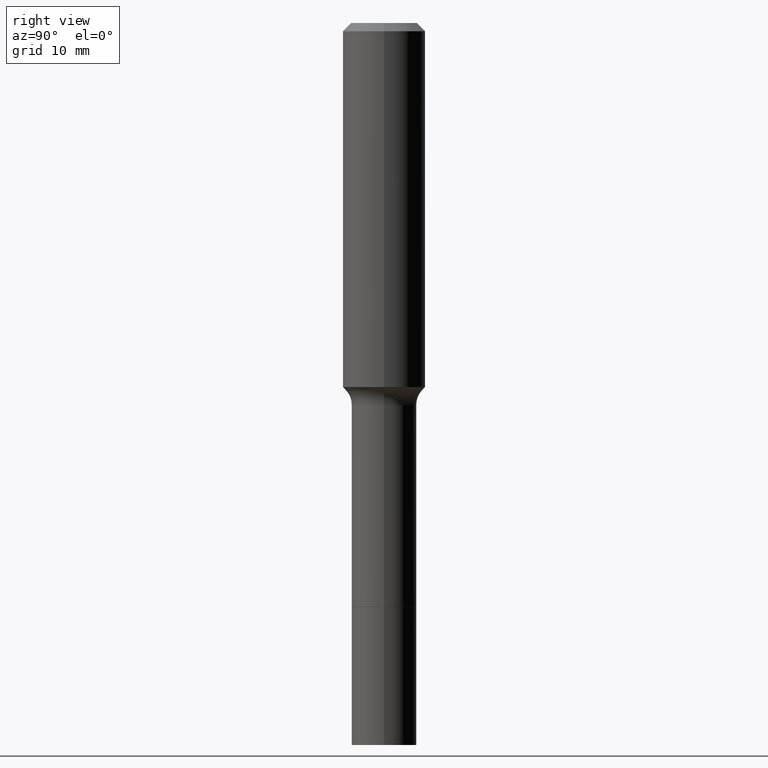
[diagram: clean part render]
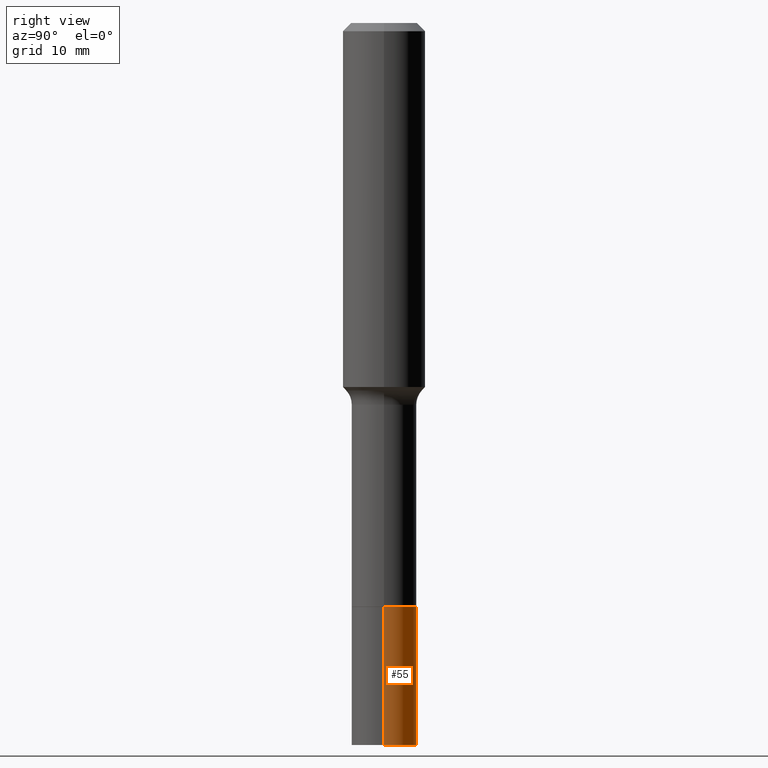
[diagram: same view with one face highlighted and labeled with its STEP entity id]
A machine part, right view. The second image highlights one B-rep face of the part: STEP entity #55.
In plain terms, the highlighted cylindrical surface (edge-blend (fillet) strip) has radius 3.1496 mm, axis along (-0, 0, 1).
Its self-contained STEP definition (entity closure, byte-faithful):
#13 = DIRECTION ( 'NONE',  ( -2.445468806185136597E-29, 3.491481338843145583E-15, 1.000000000000000000 ) ) ;
#55 = ADVANCED_FACE ( 'NONE', ( #202 ), #233, .T. ) ;
#60 = CARTESIAN_POINT ( 'NONE',  ( -0.1240000000000000824, -6.897598282466119822E-15, -2.227899999999999991 ) ) ;
#69 = ORIENTED_EDGE ( 'NONE', *, *, #231, .F. ) ;
#103 = VERTEX_POINT ( 'NONE', #434 ) ;
#116 = DIRECTION ( 'NONE',  ( -2.445468806185136597E-29, 3.491481338843145583E-15, 1.000000000000000000 ) ) ;
#128 = CARTESIAN_POINT ( 'NONE',  ( 0.1240000000000000824, -8.644558646841741371E-15, -2.227899999999999991 ) ) ;
#136 = CARTESIAN_POINT ( 'NONE',  ( 6.739467482965618232E-29, -9.622173421717824390E-15, -2.755900000000000016 ) ) ;
#138 = VECTOR ( 'NONE', #281, 39.37007874015748143 ) ;
#153 = VECTOR ( 'NONE', #369, 39.37007874015748143 ) ;
#162 = AXIS2_PLACEMENT_3D ( 'NONE', #136, #13, #328 ) ;
#171 = VERTEX_POINT ( 'NONE', #490 ) ;
#172 = CIRCLE ( 'NONE', #463, 0.1239999999999999991 ) ;
#183 = EDGE_CURVE ( 'NONE', #218, #237, #227, .T. ) ;
#186 = ORIENTED_EDGE ( 'NONE', *, *, #433, .T. ) ;
#191 = DIRECTION ( 'NONE',  ( 1.000000000000000000, -6.982962677686265922E-15, 0.000000000000000000 ) ) ;
#202 = FACE_OUTER_BOUND ( 'NONE', #468, .T. ) ;
#218 = VERTEX_POINT ( 'NONE', #250 ) ;
#227 = CIRCLE ( 'NONE', #162, 0.1240000000000001656 ) ;
#231 = EDGE_CURVE ( 'NONE', #218, #171, #406, .T. ) ;
#233 = CYLINDRICAL_SURFACE ( 'NONE', #504, 0.1240000000000000824 ) ;
#237 = VERTEX_POINT ( 'NONE', #442 ) ;
#250 = CARTESIAN_POINT ( 'NONE',  ( 0.1240000000000001656, -1.048806079375092171E-14, -2.755900000000000016 ) ) ;
#255 = LINE ( 'NONE', #60, #153 ) ;
#281 = DIRECTION ( 'NONE',  ( -2.445468806185136877E-29, 3.491481338843145188E-15, 1.000000000000000000 ) ) ;
#322 = ORIENTED_EDGE ( 'NONE', *, *, #183, .T. ) ;
#328 = DIRECTION ( 'NONE',  ( 1.000000000000000000, -6.982962677686261189E-15, 0.000000000000000000 ) ) ;
#336 = DIRECTION ( 'NONE',  ( -2.445468806185136597E-29, 3.491481338843145583E-15, 1.000000000000000000 ) ) ;
#369 = DIRECTION ( 'NONE',  ( -2.445468806185136877E-29, 3.491481338843145188E-15, 1.000000000000000000 ) ) ;
#371 = CARTESIAN_POINT ( 'NONE',  ( 5.448259953299865383E-29, -7.778671274808644046E-15, -2.227899999999999991 ) ) ;
#388 = EDGE_CURVE ( 'NONE', #171, #103, #172, .T. ) ;
#393 = CARTESIAN_POINT ( 'NONE',  ( 5.448259953299865383E-29, -7.778671274808644046E-15, -2.227899999999999991 ) ) ;
#406 = LINE ( 'NONE', #128, #138 ) ;
#423 = DIRECTION ( 'NONE',  ( 1.000000000000000000, -6.982962677686270655E-15, 0.000000000000000000 ) ) ;
#433 = EDGE_CURVE ( 'NONE', #237, #103, #255, .T. ) ;
#434 = CARTESIAN_POINT ( 'NONE',  ( -0.1239999999999999991, -7.819349355920709205E-15, -2.227899999999999991 ) ) ;
#442 = CARTESIAN_POINT ( 'NONE',  ( -0.1240000000000001656, -7.819349355920709205E-15, -2.755900000000000016 ) ) ;
#463 = AXIS2_PLACEMENT_3D ( 'NONE', #371, #336, #423 ) ;
#468 = EDGE_LOOP ( 'NONE', ( #322, #186, #510, #69 ) ) ;
#490 = CARTESIAN_POINT ( 'NONE',  ( 0.1239999999999999991, -8.644558646841741371E-15, -2.227899999999999991 ) ) ;
#504 = AXIS2_PLACEMENT_3D ( 'NONE', #393, #116, #191 ) ;
#510 = ORIENTED_EDGE ( 'NONE', *, *, #388, .F. ) ;